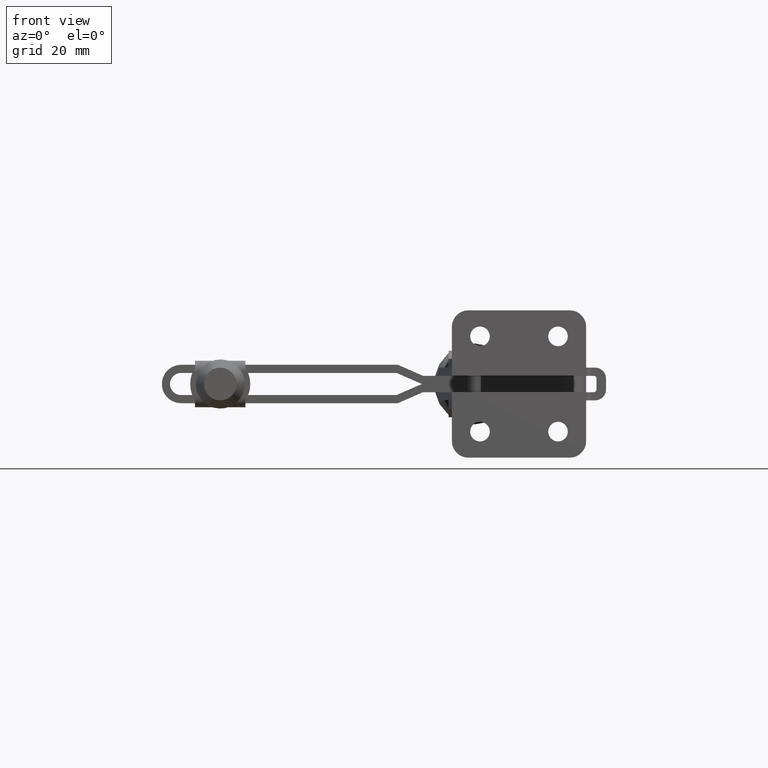
[diagram: clean part render]
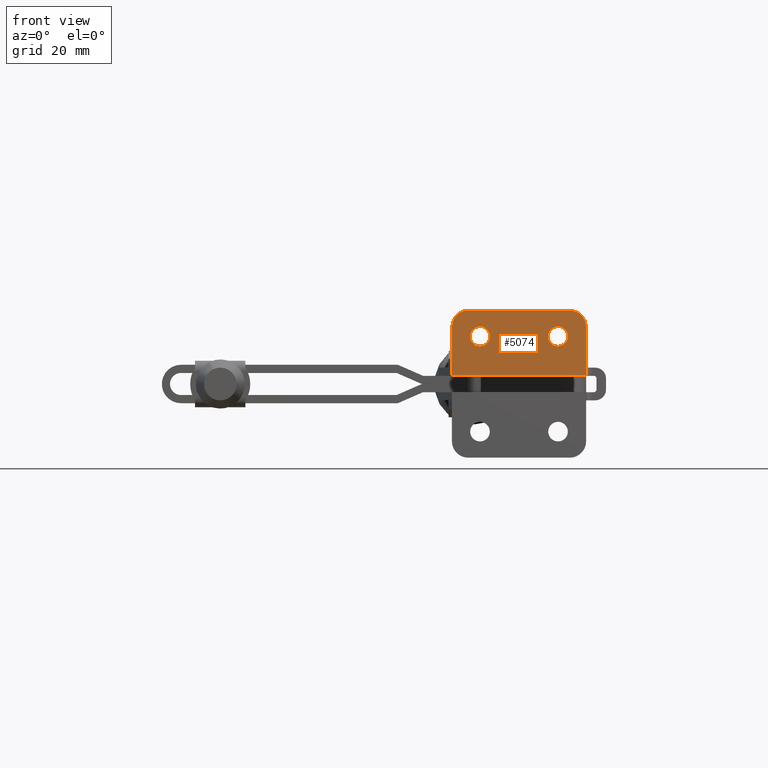
[diagram: same view with one face highlighted and labeled with its STEP entity id]
A machine part, front view. The second image highlights one B-rep face of the part: STEP entity #5074.
In plain terms, the highlighted planar face has unit normal (0, -1, 0).
Its self-contained STEP definition (entity closure, byte-faithful):
#595 = EDGE_CURVE ( 'NONE', #11929, #10477, #3539, .T. ) ;
#683 = ORIENTED_EDGE ( 'NONE', *, *, #2789, .T. ) ;
#1088 = AXIS2_PLACEMENT_3D ( 'NONE', #2113, #10589, #4917 ) ;
#1119 = FACE_BOUND ( 'NONE', #3179, .T. ) ;
#1339 = CARTESIAN_POINT ( 'NONE',  ( -38.90000000000015500, 0.3600000000000001000, 17.44999999999992500 ) ) ;
#1345 = CARTESIAN_POINT ( 'NONE',  ( -6.000000000000002700, 0.3599999999999999900, 27.00000000000000400 ) ) ;
#1501 = AXIS2_PLACEMENT_3D ( 'NONE', #1339, #6925, #10970 ) ;
#1824 = DIRECTION ( 'NONE',  ( -0.0000000000000000000, 1.000000000000000000, -0.0000000000000000000 ) ) ;
#1861 = CARTESIAN_POINT ( 'NONE',  ( -6.000000000000005300, 0.3599999999999999900, 27.00000000000000400 ) ) ;
#1912 = EDGE_CURVE ( 'NONE', #3586, #12089, #7595, .T. ) ;
#2007 = AXIS2_PLACEMENT_3D ( 'NONE', #7419, #1824, #8382 ) ;
#2113 = CARTESIAN_POINT ( 'NONE',  ( -43.19933982822002600, 0.3599999999999999900, 21.00000003631883100 ) ) ;
#2224 = CARTESIAN_POINT ( 'NONE',  ( -5.999339828220075600, 0.3599999999999999900, 21.00000003631889100 ) ) ;
#2409 = EDGE_LOOP ( 'NONE', ( #2611, #7470 ) ) ;
#2552 = LINE ( 'NONE', #3746, #9759 ) ;
#2611 = ORIENTED_EDGE ( 'NONE', *, *, #3474, .T. ) ;
#2628 = ORIENTED_EDGE ( 'NONE', *, *, #3790, .T. ) ;
#2693 = CARTESIAN_POINT ( 'NONE',  ( -49.19933982822009000, 0.3599999999999999900, 2.999999999999944000 ) ) ;
#2789 = EDGE_CURVE ( 'NONE', #5446, #8624, #3884, .T. ) ;
#3152 = DIRECTION ( 'NONE',  ( 0.0000000000000000000, 0.0000000000000000000, -1.000000000000000000 ) ) ;
#3179 = EDGE_LOOP ( 'NONE', ( #10125, #7063 ) ) ;
#3322 = FACE_OUTER_BOUND ( 'NONE', #10443, .T. ) ;
#3394 = CIRCLE ( 'NONE', #2007, 3.600000000000047600 ) ;
#3469 = CARTESIAN_POINT ( 'NONE',  ( -49.19933982822009000, 0.3599999999999999900, 2.999999999999944000 ) ) ;
#3474 = EDGE_CURVE ( 'NONE', #5344, #5034, #4732, .T. ) ;
#3539 = CIRCLE ( 'NONE', #1501, 3.600000000000044100 ) ;
#3586 = VERTEX_POINT ( 'NONE', #3469 ) ;
#3746 = CARTESIAN_POINT ( 'NONE',  ( -49.19933982822004000, 0.3599999999999999900, 20.99999999999983700 ) ) ;
#3790 = EDGE_CURVE ( 'NONE', #8208, #3586, #2552, .T. ) ;
#3868 = ORIENTED_EDGE ( 'NONE', *, *, #4906, .T. ) ;
#3876 = EDGE_CURVE ( 'NONE', #10477, #11929, #8276, .T. ) ;
#3884 = CIRCLE ( 'NONE', #7475, 6.000000000000012400 ) ;
#3987 = PLANE ( 'NONE',  #1088 ) ;
#4053 = VECTOR ( 'NONE', #4607, 1000.000000000000000 ) ;
#4133 = AXIS2_PLACEMENT_3D ( 'NONE', #4498, #11136, #5453 ) ;
#4166 = EDGE_CURVE ( 'NONE', #12089, #5446, #4510, .T. ) ;
#4200 = EDGE_CURVE ( 'NONE', #9854, #8208, #7755, .T. ) ;
#4201 = CARTESIAN_POINT ( 'NONE',  ( -10.30000000000019800, 0.3600000000000001000, 17.44999999999992500 ) ) ;
#4296 = CARTESIAN_POINT ( 'NONE',  ( -10.30000000000019800, 0.3600000000000001000, 13.84999999999987700 ) ) ;
#4498 = CARTESIAN_POINT ( 'NONE',  ( -43.19933982822002600, 0.3599999999999999900, 21.00000003631883100 ) ) ;
#4510 = LINE ( 'NONE', #5322, #9245 ) ;
#4607 = DIRECTION ( 'NONE',  ( -1.000000000000000000, 0.0000000000000000000, -1.398970545142581700E-015 ) ) ;
#4732 = CIRCLE ( 'NONE', #9308, 3.600000000000047600 ) ;
#4877 = CARTESIAN_POINT ( 'NONE',  ( -38.90000000000015500, 0.3600000000000001000, 17.44999999999992500 ) ) ;
#4906 = EDGE_CURVE ( 'NONE', #8624, #9854, #11614, .T. ) ;
#4917 = DIRECTION ( 'NONE',  ( 0.0000000000000000000, -0.0000000000000000000, -1.000000000000000000 ) ) ;
#5034 = VERTEX_POINT ( 'NONE', #11480 ) ;
#5074 = ADVANCED_FACE ( 'NONE', ( #5806, #1119, #3322 ), #3987, .T. ) ;
#5134 = DIRECTION ( 'NONE',  ( 0.0000000000000000000, 0.0000000000000000000, -1.000000000000000000 ) ) ;
#5322 = CARTESIAN_POINT ( 'NONE',  ( 0.0006601717799284901500, 0.3599999999999999900, 2.999999999999933800 ) ) ;
#5344 = VERTEX_POINT ( 'NONE', #4296 ) ;
#5446 = VERTEX_POINT ( 'NONE', #9213 ) ;
#5453 = DIRECTION ( 'NONE',  ( 0.0000000000000000000, 0.0000000000000000000, -1.000000000000000000 ) ) ;
#5806 = FACE_BOUND ( 'NONE', #2409, .T. ) ;
#5836 = DIRECTION ( 'NONE',  ( 0.0000000000000000000, 0.0000000000000000000, -1.000000000000000000 ) ) ;
#6644 = ORIENTED_EDGE ( 'NONE', *, *, #4166, .T. ) ;
#6925 = DIRECTION ( 'NONE',  ( -0.0000000000000000000, 1.000000000000000000, -0.0000000000000000000 ) ) ;
#7001 = VECTOR ( 'NONE', #12150, 1000.000000000000000 ) ;
#7063 = ORIENTED_EDGE ( 'NONE', *, *, #595, .T. ) ;
#7419 = CARTESIAN_POINT ( 'NONE',  ( -10.30000000000019800, 0.3600000000000001000, 17.44999999999992500 ) ) ;
#7470 = ORIENTED_EDGE ( 'NONE', *, *, #7747, .T. ) ;
#7475 = AXIS2_PLACEMENT_3D ( 'NONE', #2224, #8799, #3152 ) ;
#7508 = CARTESIAN_POINT ( 'NONE',  ( 0.0006601717799284901500, 0.3599999999999999900, 2.999999999999933800 ) ) ;
#7595 = LINE ( 'NONE', #2693, #7001 ) ;
#7747 = EDGE_CURVE ( 'NONE', #5034, #5344, #3394, .T. ) ;
#7755 = CIRCLE ( 'NONE', #4133, 6.000000000000019500 ) ;
#8208 = VERTEX_POINT ( 'NONE', #10070 ) ;
#8276 = CIRCLE ( 'NONE', #10107, 3.600000000000044100 ) ;
#8382 = DIRECTION ( 'NONE',  ( 0.0000000000000000000, 0.0000000000000000000, -1.000000000000000000 ) ) ;
#8624 = VERTEX_POINT ( 'NONE', #1345 ) ;
#8799 = DIRECTION ( 'NONE',  ( 0.0000000000000000000, -1.000000000000000000, 0.0000000000000000000 ) ) ;
#9213 = CARTESIAN_POINT ( 'NONE',  ( 0.0006601717799370465700, 0.3600000000000001000, 21.00000000000000400 ) ) ;
#9245 = VECTOR ( 'NONE', #11006, 1000.000000000000000 ) ;
#9308 = AXIS2_PLACEMENT_3D ( 'NONE', #4201, #10814, #5134 ) ;
#9576 = ORIENTED_EDGE ( 'NONE', *, *, #4200, .T. ) ;
#9759 = VECTOR ( 'NONE', #11320, 1000.000000000000000 ) ;
#9854 = VERTEX_POINT ( 'NONE', #11029 ) ;
#10043 = ORIENTED_EDGE ( 'NONE', *, *, #1912, .T. ) ;
#10070 = CARTESIAN_POINT ( 'NONE',  ( -49.19933982822004000, 0.3599999999999999900, 20.99999999999983700 ) ) ;
#10091 = CARTESIAN_POINT ( 'NONE',  ( -38.90000000000015500, 0.3600000000000001000, 21.04999999999996900 ) ) ;
#10107 = AXIS2_PLACEMENT_3D ( 'NONE', #4877, #11531, #5836 ) ;
#10125 = ORIENTED_EDGE ( 'NONE', *, *, #3876, .T. ) ;
#10443 = EDGE_LOOP ( 'NONE', ( #9576, #2628, #10043, #6644, #683, #3868 ) ) ;
#10477 = VERTEX_POINT ( 'NONE', #11424 ) ;
#10589 = DIRECTION ( 'NONE',  ( 0.0000000000000000000, -1.000000000000000000, 0.0000000000000000000 ) ) ;
#10814 = DIRECTION ( 'NONE',  ( -0.0000000000000000000, 1.000000000000000000, -0.0000000000000000000 ) ) ;
#10970 = DIRECTION ( 'NONE',  ( 0.0000000000000000000, 0.0000000000000000000, -1.000000000000000000 ) ) ;
#11006 = DIRECTION ( 'NONE',  ( 4.753560664337604300E-016, 0.0000000000000000000, 1.000000000000000000 ) ) ;
#11029 = CARTESIAN_POINT ( 'NONE',  ( -43.20000000000013100, 0.3599999999999999900, 26.99999999999995000 ) ) ;
#11136 = DIRECTION ( 'NONE',  ( 0.0000000000000000000, -1.000000000000000000, 0.0000000000000000000 ) ) ;
#11320 = DIRECTION ( 'NONE',  ( -2.698458740408382500E-015, 0.0000000000000000000, -1.000000000000000000 ) ) ;
#11424 = CARTESIAN_POINT ( 'NONE',  ( -38.90000000000015500, 0.3600000000000001000, 13.84999999999988100 ) ) ;
#11480 = CARTESIAN_POINT ( 'NONE',  ( -10.30000000000019800, 0.3600000000000001000, 21.04999999999997200 ) ) ;
#11531 = DIRECTION ( 'NONE',  ( -0.0000000000000000000, 1.000000000000000000, -0.0000000000000000000 ) ) ;
#11614 = LINE ( 'NONE', #1861, #4053 ) ;
#11929 = VERTEX_POINT ( 'NONE', #10091 ) ;
#12089 = VERTEX_POINT ( 'NONE', #7508 ) ;
#12150 = DIRECTION ( 'NONE',  ( 1.000000000000000000, 0.0000000000000000000, -2.115516434118056700E-016 ) ) ;